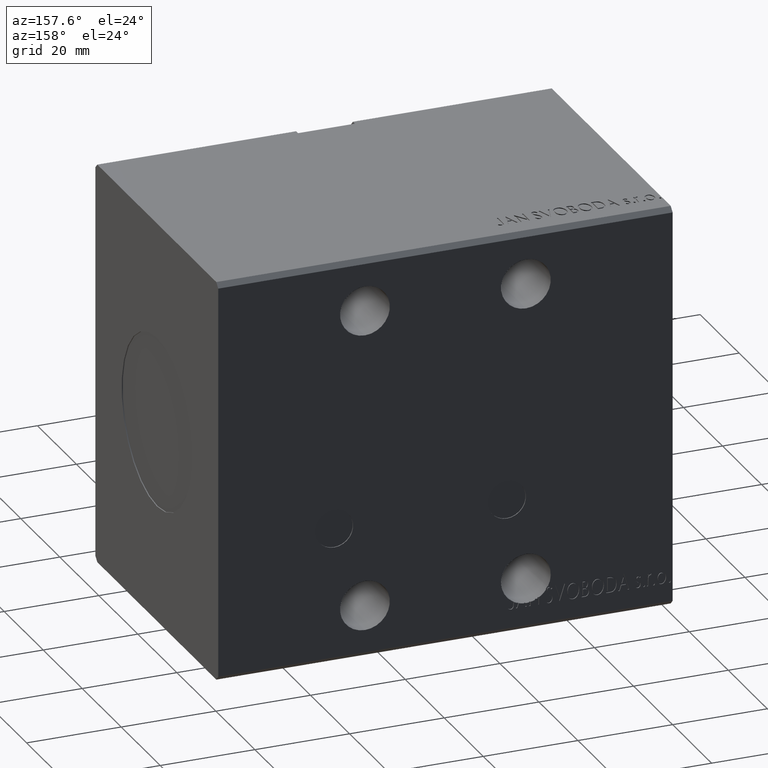
[diagram: clean part render]
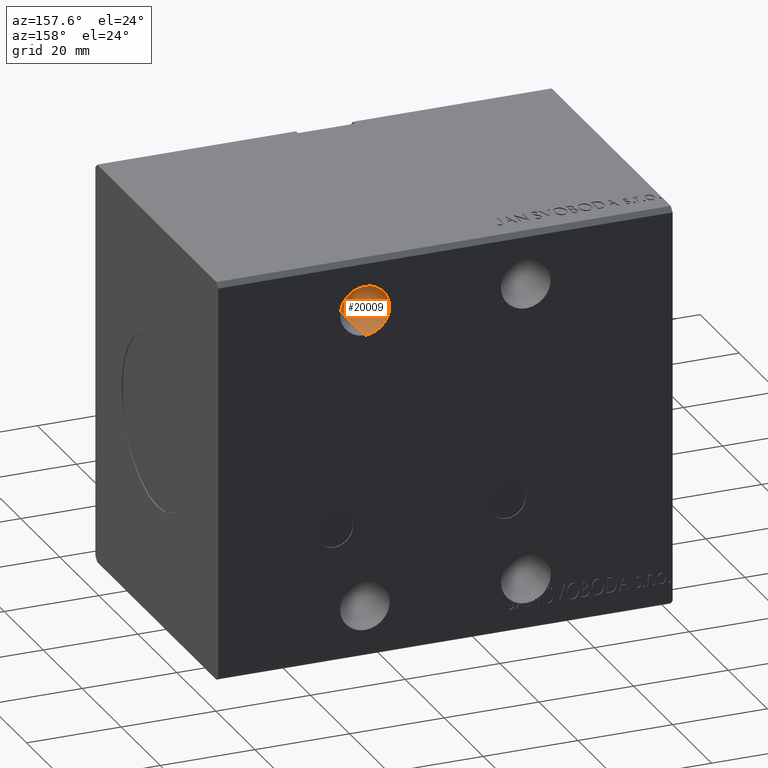
[diagram: same view with one face highlighted and labeled with its STEP entity id]
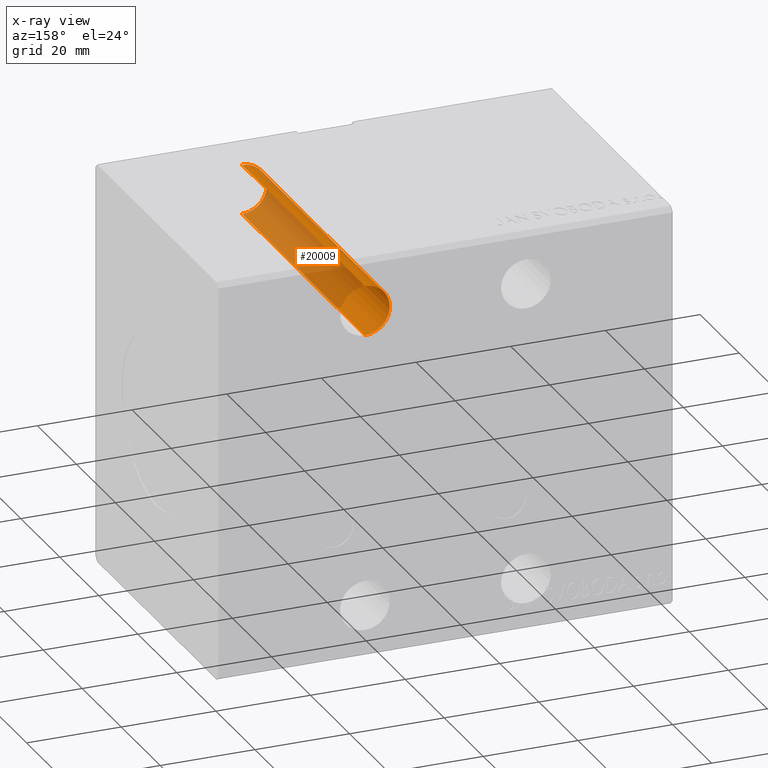
[diagram: x-ray of the same camera — body ghosted, the highlighted face saturated]
A machine part, auxiliary view. The second image highlights one B-rep face of the part: STEP entity #20009.
The next image is the same camera in x-ray: the body ghosted, the highlighted face saturated — about 61% of this face is hidden behind the body in this view.
In plain terms, the highlighted cylindrical surface (edge-blend (fillet) strip) has radius 5.25 mm, axis along (-0, -1, -0).
Its self-contained STEP definition (entity closure, byte-faithful):
#14 = VERTEX_POINT ( 'NONE', #27314 ) ;
#1271 = CARTESIAN_POINT ( 'NONE',  ( 65.00000000000000000, 31.50000000000002842, 36.75000000000001421 ) ) ;
#1924 = DIRECTION ( 'NONE',  ( -0.000000000000000000, -1.000000000000000000, -5.507058653894625853E-17 ) ) ;
#2817 = DIRECTION ( 'NONE',  ( 0.000000000000000000, 0.000000000000000000, -1.000000000000000000 ) ) ;
#3515 = DIRECTION ( 'NONE',  ( 0.000000000000000000, 0.000000000000000000, 1.000000000000000000 ) ) ;
#4496 = AXIS2_PLACEMENT_3D ( 'NONE', #38368, #18995, #2817 ) ;
#5444 = VECTOR ( 'NONE', #33428, 1000.000000000000000 ) ;
#8300 = LINE ( 'NONE', #34288, #25599 ) ;
#16130 = CARTESIAN_POINT ( 'NONE',  ( 65.00000000000000000, -31.50000000000000000, 36.75000000000000711 ) ) ;
#16314 = EDGE_LOOP ( 'NONE', ( #27109, #35634, #30295, #35649 ) ) ;
#16982 = AXIS2_PLACEMENT_3D ( 'NONE', #35475, #34840, #22280 ) ;
#18995 = DIRECTION ( 'NONE',  ( -0.000000000000000000, -1.000000000000000000, -5.507058653894625853E-17 ) ) ;
#20009 = ADVANCED_FACE ( 'NONE', ( #41545 ), #25392, .F. ) ;
#20156 = EDGE_CURVE ( 'NONE', #29866, #39762, #8300, .T. ) ;
#22280 = DIRECTION ( 'NONE',  ( 0.000000000000000000, 0.000000000000000000, 1.000000000000000000 ) ) ;
#22440 = VERTEX_POINT ( 'NONE', #16130 ) ;
#22901 = DIRECTION ( 'NONE',  ( 0.000000000000000000, -1.000000000000000000, -0.000000000000000000 ) ) ;
#25392 = CYLINDRICAL_SURFACE ( 'NONE', #4496, 5.250000000000004441 ) ;
#25599 = VECTOR ( 'NONE', #1924, 1000.000000000000000 ) ;
#27109 = ORIENTED_EDGE ( 'NONE', *, *, #38687, .T. ) ;
#27314 = CARTESIAN_POINT ( 'NONE',  ( 65.00000000000000000, 31.50000000000002842, 36.75000000000001421 ) ) ;
#28765 = AXIS2_PLACEMENT_3D ( 'NONE', #29267, #22901, #3515 ) ;
#29267 = CARTESIAN_POINT ( 'NONE',  ( 65.00000000000000000, -31.50000000000000000, 31.50000000000000000 ) ) ;
#29866 = VERTEX_POINT ( 'NONE', #42095 ) ;
#30295 = ORIENTED_EDGE ( 'NONE', *, *, #36539, .T. ) ;
#31663 = CARTESIAN_POINT ( 'NONE',  ( 65.00000000000000000, -31.50000000000000000, 26.24999999999999645 ) ) ;
#33428 = DIRECTION ( 'NONE',  ( -0.000000000000000000, -1.000000000000000000, -5.507058653894625853E-17 ) ) ;
#34288 = CARTESIAN_POINT ( 'NONE',  ( 65.00000000000000000, 31.50000000000002842, 26.25000000000000355 ) ) ;
#34840 = DIRECTION ( 'NONE',  ( -0.000000000000000000, 1.000000000000000000, 5.507058653894625853E-17 ) ) ;
#35475 = CARTESIAN_POINT ( 'NONE',  ( 65.00000000000000000, 31.50000000000002842, 31.50000000000000711 ) ) ;
#35634 = ORIENTED_EDGE ( 'NONE', *, *, #39119, .T. ) ;
#35649 = ORIENTED_EDGE ( 'NONE', *, *, #20156, .F. ) ;
#36539 = EDGE_CURVE ( 'NONE', #22440, #39762, #40331, .T. ) ;
#36629 = LINE ( 'NONE', #1271, #5444 ) ;
#38368 = CARTESIAN_POINT ( 'NONE',  ( 65.00000000000000000, 31.50000000000002842, 31.50000000000000711 ) ) ;
#38687 = EDGE_CURVE ( 'NONE', #29866, #14, #40086, .T. ) ;
#39119 = EDGE_CURVE ( 'NONE', #14, #22440, #36629, .T. ) ;
#39762 = VERTEX_POINT ( 'NONE', #31663 ) ;
#40086 = CIRCLE ( 'NONE', #16982, 5.250000000000004441 ) ;
#40331 = CIRCLE ( 'NONE', #28765, 5.250000000000004441 ) ;
#41545 = FACE_OUTER_BOUND ( 'NONE', #16314, .T. ) ;
#42095 = CARTESIAN_POINT ( 'NONE',  ( 65.00000000000000000, 31.50000000000002842, 26.25000000000000355 ) ) ;